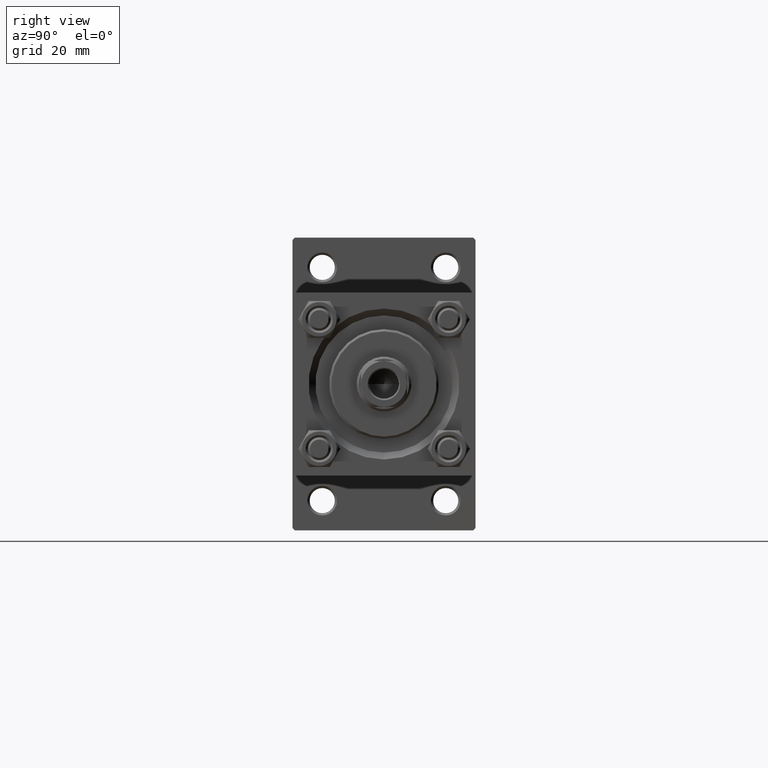
[diagram: clean part render]
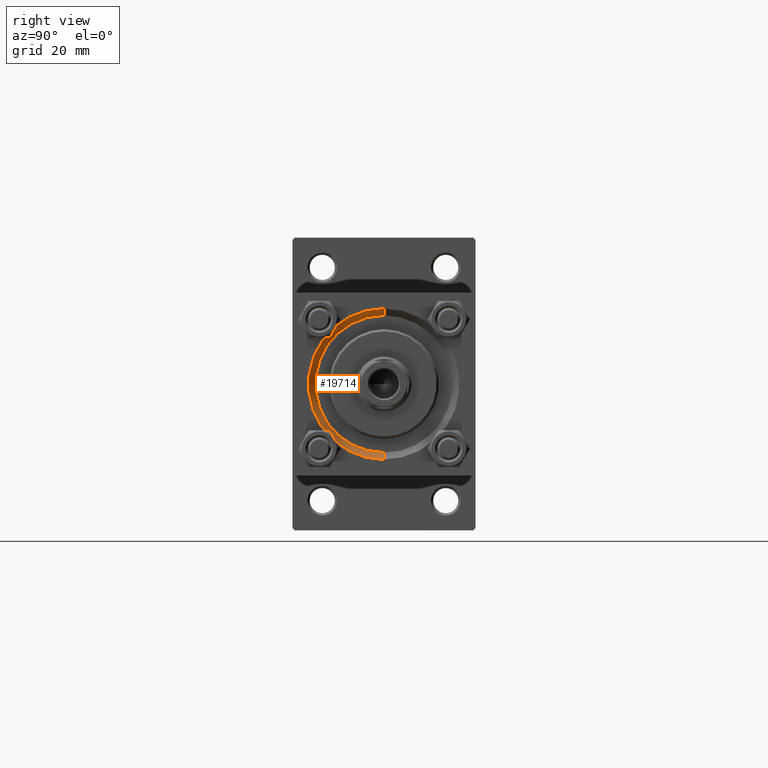
[diagram: same view with one face highlighted and labeled with its STEP entity id]
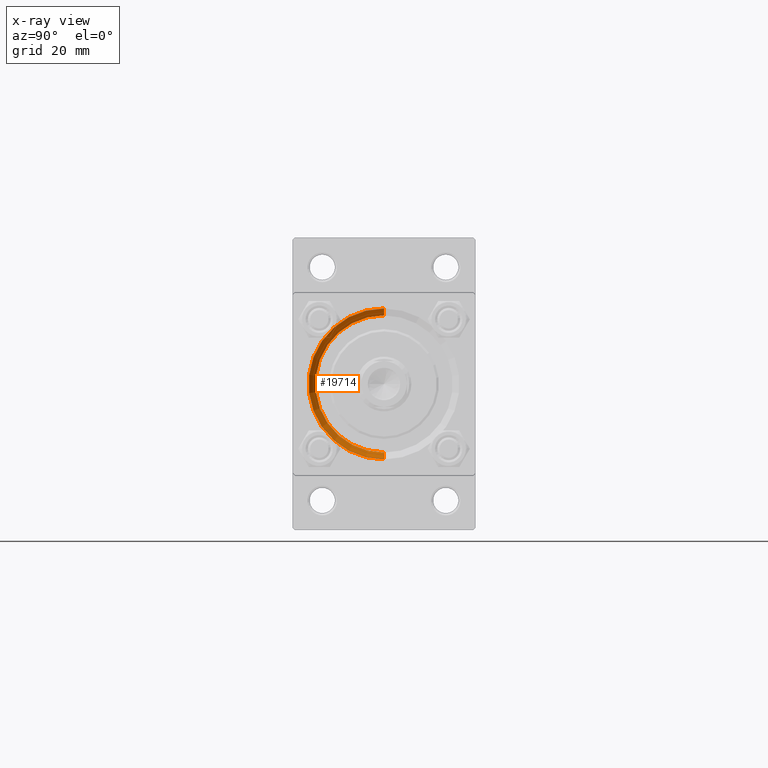
[diagram: x-ray of the same camera — body ghosted, the highlighted face saturated]
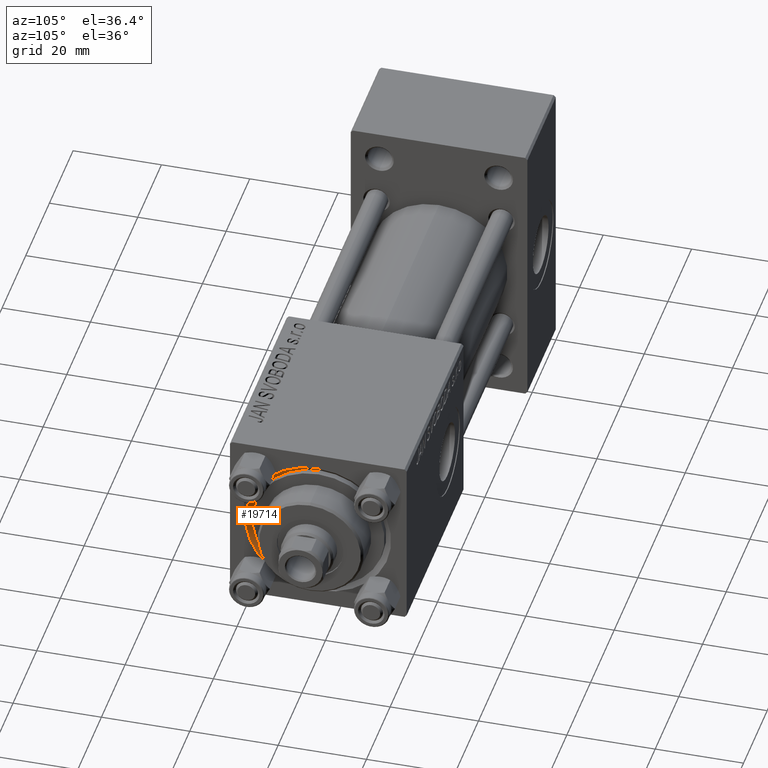
[diagram: same view with one face highlighted and labeled with its STEP entity id]
A machine part, right view. The second image highlights one B-rep face of the part: STEP entity #19714.
The next image is the same camera in x-ray: the body ghosted, the highlighted face saturated — about 0% of this face is hidden behind the body in this view.
A second angle (auxiliary view) of the same face is appended — the face is thin or edge-on in the first view.
In plain terms, the highlighted conical surface has half-angle 45 deg.
Its self-contained STEP definition (entity closure, byte-faithful):
#1891 = AXIS2_PLACEMENT_3D ( 'NONE', #49045, #2863, #22287 ) ;
#2840 = CARTESIAN_POINT ( 'NONE',  ( 124.5000000000000000, 0.000000000000000000, 0.000000000000000000 ) ) ;
#2863 = DIRECTION ( 'NONE',  ( 1.000000000000000000, 0.000000000000000000, 0.000000000000000000 ) ) ;
#2980 = CARTESIAN_POINT ( 'NONE',  ( 126.0000000000000000, 2.020667218593131128E-15, 16.49999999999998579 ) ) ;
#3835 = CIRCLE ( 'NONE', #12672, 16.49999999999998579 ) ;
#5747 = CARTESIAN_POINT ( 'NONE',  ( 126.0000000000000000, 0.000000000000000000, 0.000000000000000000 ) ) ;
#5877 = DIRECTION ( 'NONE',  ( 0.000000000000000000, 0.000000000000000000, -1.000000000000000000 ) ) ;
#7401 = LINE ( 'NONE', #7637, #34574 ) ;
#7637 = CARTESIAN_POINT ( 'NONE',  ( 124.5000000000000000, 1.836970198721029589E-15, 15.00000000000000000 ) ) ;
#10770 = DIRECTION ( 'NONE',  ( 0.7071067811865507924, 0.000000000000000000, -0.7071067811865441310 ) ) ;
#12556 = ORIENTED_EDGE ( 'NONE', *, *, #27054, .F. ) ;
#12672 = AXIS2_PLACEMENT_3D ( 'NONE', #5747, #13575, #21143 ) ;
#13575 = DIRECTION ( 'NONE',  ( -1.000000000000000000, -0.000000000000000000, -0.000000000000000000 ) ) ;
#16945 = CONICAL_SURFACE ( 'NONE', #37932, 15.00000000000000000, 0.7853981633974437271 ) ;
#18085 = LINE ( 'NONE', #49402, #21438 ) ;
#19714 = ADVANCED_FACE ( 'NONE', ( #44237 ), #16945, .F. ) ;
#20279 = EDGE_LOOP ( 'NONE', ( #12556, #32563, #46646, #40949 ) ) ;
#21143 = DIRECTION ( 'NONE',  ( 0.000000000000000000, 0.000000000000000000, 1.000000000000000000 ) ) ;
#21438 = VECTOR ( 'NONE', #10770, 1000.000000000000114 ) ;
#22287 = DIRECTION ( 'NONE',  ( 0.000000000000000000, 0.000000000000000000, 1.000000000000000000 ) ) ;
#22411 = CARTESIAN_POINT ( 'NONE',  ( 124.5000000000000000, 1.836970198721029589E-15, 15.00000000000000000 ) ) ;
#26761 = CARTESIAN_POINT ( 'NONE',  ( 124.5000000000000000, 0.000000000000000000, -15.00000000000000000 ) ) ;
#27054 = EDGE_CURVE ( 'NONE', #38588, #41767, #28468, .T. ) ;
#28468 = CIRCLE ( 'NONE', #1891, 15.00000000000000000 ) ;
#31766 = VERTEX_POINT ( 'NONE', #2980 ) ;
#32272 = CARTESIAN_POINT ( 'NONE',  ( 126.0000000000000000, 0.000000000000000000, -16.49999999999998579 ) ) ;
#32563 = ORIENTED_EDGE ( 'NONE', *, *, #45840, .T. ) ;
#34384 = EDGE_CURVE ( 'NONE', #41767, #48607, #18085, .T. ) ;
#34574 = VECTOR ( 'NONE', #37942, 1000.000000000000114 ) ;
#37793 = EDGE_CURVE ( 'NONE', #48607, #31766, #3835, .T. ) ;
#37932 = AXIS2_PLACEMENT_3D ( 'NONE', #2840, #40934, #5877 ) ;
#37942 = DIRECTION ( 'NONE',  ( 0.7071067811865507924, 8.659560562354892183E-17, 0.7071067811865441310 ) ) ;
#38588 = VERTEX_POINT ( 'NONE', #22411 ) ;
#40934 = DIRECTION ( 'NONE',  ( 1.000000000000000000, 0.000000000000000000, 0.000000000000000000 ) ) ;
#40949 = ORIENTED_EDGE ( 'NONE', *, *, #34384, .F. ) ;
#41767 = VERTEX_POINT ( 'NONE', #26761 ) ;
#44237 = FACE_OUTER_BOUND ( 'NONE', #20279, .T. ) ;
#45840 = EDGE_CURVE ( 'NONE', #38588, #31766, #7401, .T. ) ;
#46646 = ORIENTED_EDGE ( 'NONE', *, *, #37793, .F. ) ;
#48607 = VERTEX_POINT ( 'NONE', #32272 ) ;
#49045 = CARTESIAN_POINT ( 'NONE',  ( 124.5000000000000000, 0.000000000000000000, 0.000000000000000000 ) ) ;
#49402 = CARTESIAN_POINT ( 'NONE',  ( 124.5000000000000000, 0.000000000000000000, -15.00000000000000000 ) ) ;